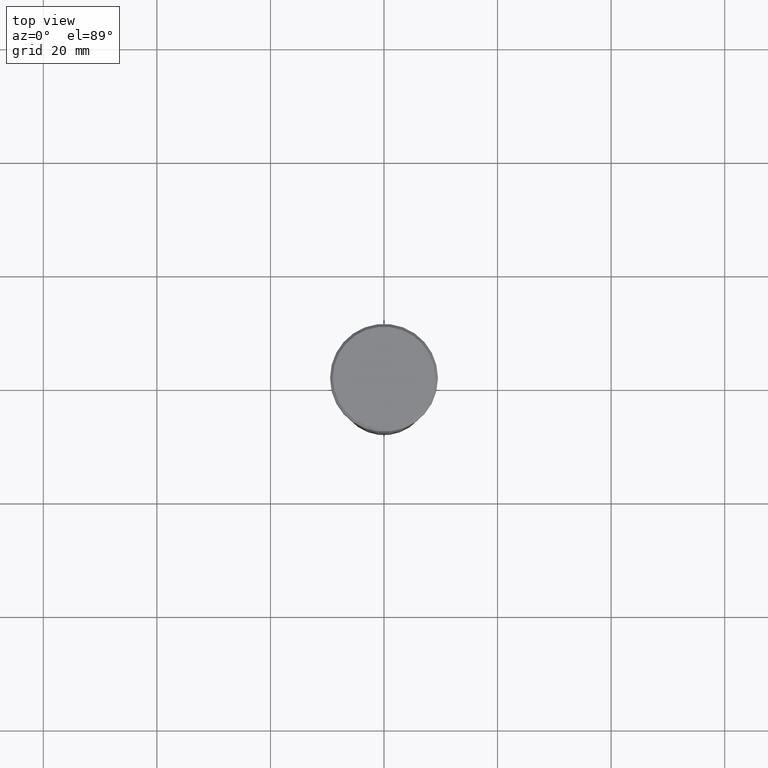
[diagram: clean part render]
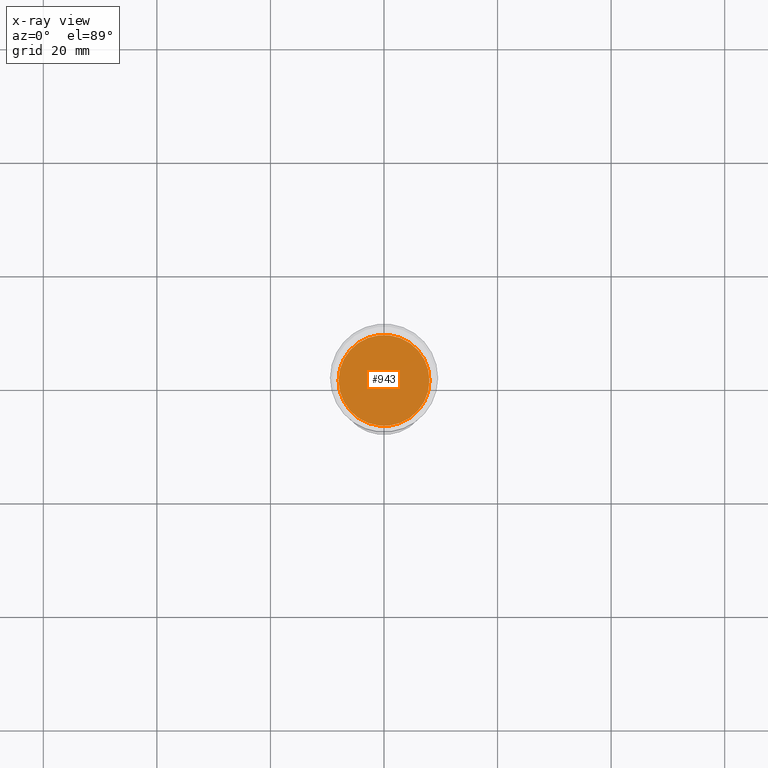
[diagram: x-ray — body ghosted, one internal face saturated and labeled with its STEP entity id]
A machine part, top view, then the same camera in x-ray: the body is ghosted and one INTERNAL B-rep face — a face not visible from any outside direction — is saturated and labeled: STEP entity #943.
In plain terms, the highlighted planar face has unit normal (0, 0, -1).
Its self-contained STEP definition (entity closure, byte-faithful):
#15 = CARTESIAN_POINT ( 'NONE',  ( 0.000000000000000000, 0.000000000000000000, -28.00000000000000000 ) ) ;
#96 = ORIENTED_EDGE ( 'NONE', *, *, #979, .T. ) ;
#107 = DIRECTION ( 'NONE',  ( -0.000000000000000000, -0.000000000000000000, 1.000000000000000000 ) ) ;
#112 = DIRECTION ( 'NONE',  ( 1.000000000000000000, 0.000000000000000000, 0.000000000000000000 ) ) ;
#146 = VERTEX_POINT ( 'NONE', #945 ) ;
#224 = CARTESIAN_POINT ( 'NONE',  ( 0.000000000000000000, 0.000000000000000000, -28.00000000000000000 ) ) ;
#290 = CARTESIAN_POINT ( 'NONE',  ( 8.000000000000000000, 0.000000000000000000, -28.00000000000000000 ) ) ;
#320 = DIRECTION ( 'NONE',  ( -0.000000000000000000, -0.000000000000000000, 1.000000000000000000 ) ) ;
#377 = AXIS2_PLACEMENT_3D ( 'NONE', #224, #320, #557 ) ;
#435 = AXIS2_PLACEMENT_3D ( 'NONE', #15, #107, #112 ) ;
#557 = DIRECTION ( 'NONE',  ( 1.000000000000000000, 0.000000000000000000, 0.000000000000000000 ) ) ;
#652 = EDGE_LOOP ( 'NONE', ( #96, #832 ) ) ;
#653 = PLANE ( 'NONE',  #702 ) ;
#702 = AXIS2_PLACEMENT_3D ( 'NONE', #1112, #1025, #833 ) ;
#832 = ORIENTED_EDGE ( 'NONE', *, *, #871, .T. ) ;
#833 = DIRECTION ( 'NONE',  ( -1.000000000000000000, 0.000000000000000000, -0.000000000000000000 ) ) ;
#871 = EDGE_CURVE ( 'NONE', #146, #902, #1123, .T. ) ;
#902 = VERTEX_POINT ( 'NONE', #290 ) ;
#916 = FACE_OUTER_BOUND ( 'NONE', #652, .T. ) ;
#943 = ADVANCED_FACE ( 'NONE', ( #916 ), #653, .F. ) ;
#945 = CARTESIAN_POINT ( 'NONE',  ( -8.000000000000000000, 9.797174393178825657E-16, -28.00000000000000000 ) ) ;
#972 = CIRCLE ( 'NONE', #377, 8.000000000000000000 ) ;
#979 = EDGE_CURVE ( 'NONE', #902, #146, #972, .T. ) ;
#1025 = DIRECTION ( 'NONE',  ( 0.000000000000000000, 0.000000000000000000, -1.000000000000000000 ) ) ;
#1112 = CARTESIAN_POINT ( 'NONE',  ( 0.000000000000000000, 0.000000000000000000, -28.00000000000000000 ) ) ;
#1123 = CIRCLE ( 'NONE', #435, 8.000000000000000000 ) ;